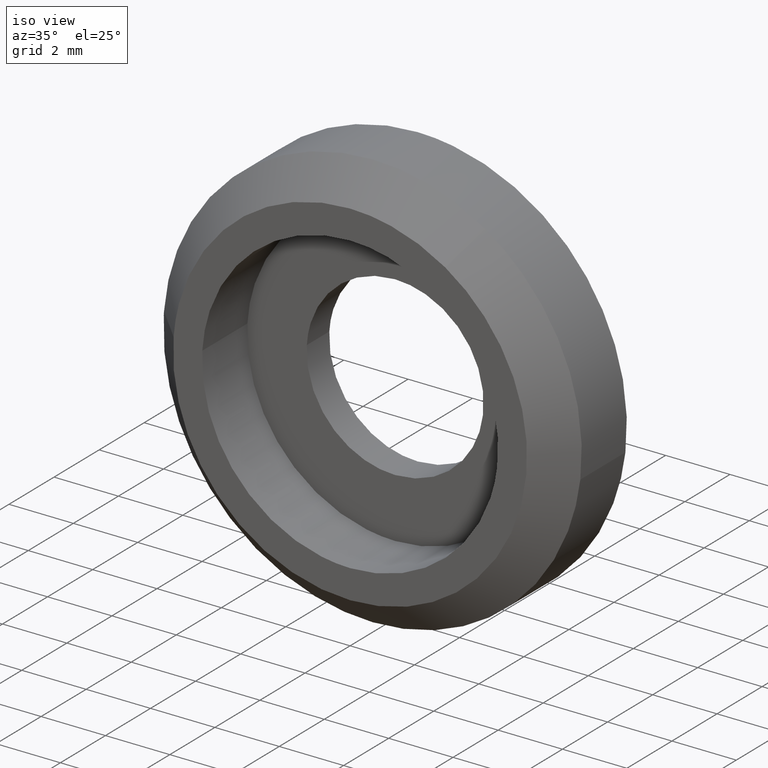
[diagram: clean part render]
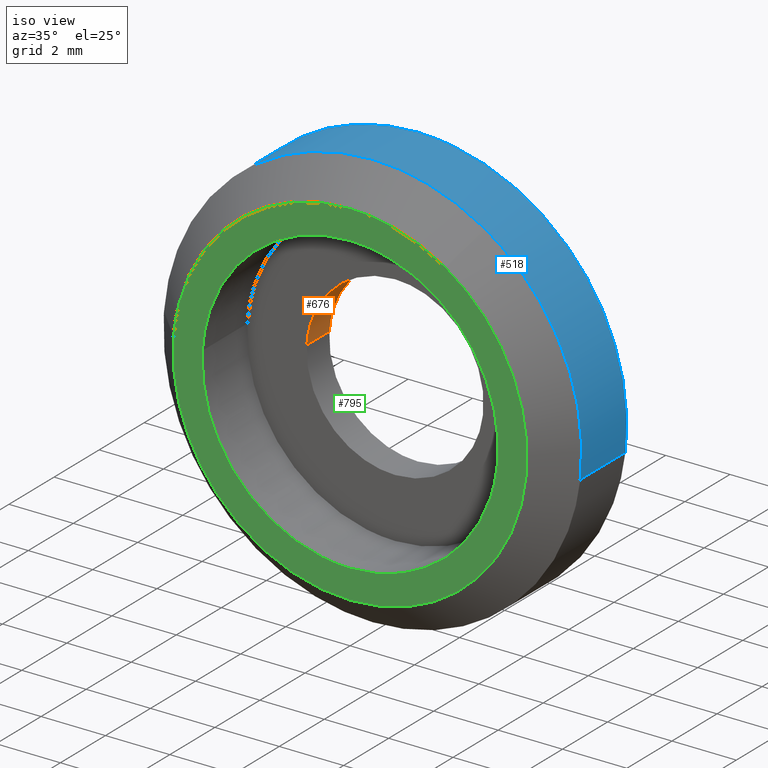
[diagram: same view with three faces highlighted in distinct colors, each labeled with its STEP entity id]
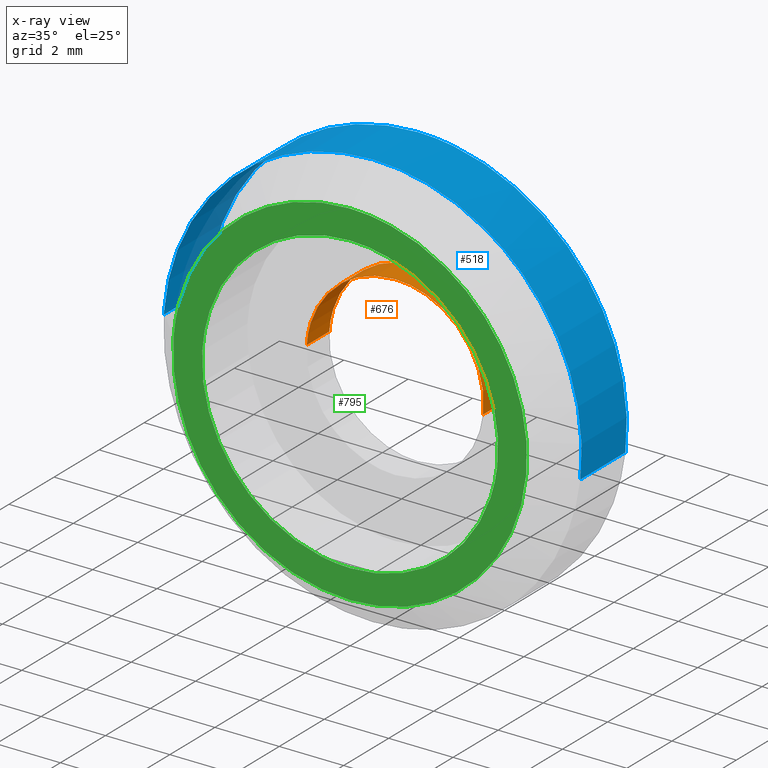
[diagram: x-ray of the same camera — body ghosted, the three highlighted faces saturated]
A machine part, iso view with three faces highlighted in distinct colors.
The next image is the same camera in x-ray (body ghosted, the three faces saturated) — at least one of them is partly hidden behind the body in this view.
Their STEP definitions:

[orange] entity #676 — the highlighted face is a freeform B-spline surface patch.
#574=CARTESIAN_POINT('',(2.730776197500084,1.025000000000000,-0.324594145306086));
#575=CARTESIAN_POINT('',(2.740065942483667,1.025000000000000,-0.246440503754439));
#576=CARTESIAN_POINT('',(2.744870695660134,1.025000000000000,-0.167883483720857));
#577=CARTESIAN_POINT('',(2.912754179380990,1.025000000000000,2.576987211939278));
#578=CARTESIAN_POINT('',(0.167883483720857,1.025000000000000,2.744870695660134));
#579=CARTESIAN_POINT('',(-2.576987211939278,1.025000000000000,2.912754179380990));
#580=CARTESIAN_POINT('',(-2.744870695660133,1.025000000000000,0.167883483720857));
#581=CARTESIAN_POINT('',(2.730776197500084,-0.025625000000000,-0.324594145306086));
#582=CARTESIAN_POINT('',(2.740065942483667,-0.025625000000000,-0.246440503754439));
#583=CARTESIAN_POINT('',(2.744870695660134,-0.025625000000000,-0.167883483720857));
#584=CARTESIAN_POINT('',(2.912754179380990,-0.025625000000000,2.576987211939278));
#585=CARTESIAN_POINT('',(0.167883483720857,-0.025625000000000,2.744870695660134));
#586=CARTESIAN_POINT('',(-2.576987211939278,-0.025625000000000,2.912754179380990));
#587=CARTESIAN_POINT('',(-2.744870695660133,-0.025625000000000,0.167883483720857));
#595=(BOUNDED_SURFACE()B_SPLINE_SURFACE(2,1,((#574,#581),(#575,#582),(#576,#583),(#577,#584),(#578,#585),(#579,#586),(#580,#587)),.UNSPECIFIED.,.F.,.F.,.U.)B_SPLINE_SURFACE_WITH_KNOTS((3,2,2,3),(2,2),(0.0,0.182253967444162,4.738603153548208,9.294952339652255),(0.0,1.0),.UNSPECIFIED.)GEOMETRIC_REPRESENTATION_ITEM()RATIONAL_B_SPLINE_SURFACE(((0.977505800795127,0.977505800795127),(0.988284271247462,0.988284271247462),(1.0,1.0),(0.707106781186548,0.707106781186548),(1.0,1.0),(0.707106781186548,0.707106781186548),(1.0,1.0)))REPRESENTATION_ITEM('')SURFACE());
#596=CARTESIAN_POINT('',(2.730776319682042,-1.124946E-014,-0.324593117398889));
#597=VERTEX_POINT('',#596);
#598=CARTESIAN_POINT('',(4.898425E-016,0.0,2.750000000000000));
#599=VERTEX_POINT('',#598);
#600=CARTESIAN_POINT('',(2.730776319682042,-1.124946E-014,-0.324593117398889));
#601=CARTESIAN_POINT('',(2.750000000000000,0.0,-0.162865809655731));
#602=CARTESIAN_POINT('',(2.750000000000000,0.0,0.0));
#603=CARTESIAN_POINT('',(2.750000000000000,0.0,2.750000000000000));
#604=CARTESIAN_POINT('',(4.898425E-016,0.0,2.750000000000000));
#612=(BOUNDED_CURVE()B_SPLINE_CURVE(2,(#600,#601,#602,#603,#604),.UNSPECIFIED.,.F.,.U.)B_SPLINE_CURVE_WITH_KNOTS((3,2,3),(0.229562537131132,0.250000000000000,0.500000000000000),.UNSPECIFIED.)CURVE()GEOMETRIC_REPRESENTATION_ITEM()RATIONAL_B_SPLINE_CURVE((0.956026878876884,0.976056022863828,1.0,0.707106781186548,1.0))REPRESENTATION_ITEM(''));
#613=EDGE_CURVE('',#597,#599,#612,.T.);
#614=ORIENTED_EDGE('',*,*,#613,.T.);
#615=CARTESIAN_POINT('',(-2.744870927625979,6.940802E-014,0.167879691026804));
#616=VERTEX_POINT('',#615);
#617=CARTESIAN_POINT('',(4.898425E-016,0.0,2.750000000000000));
#618=CARTESIAN_POINT('',(-2.586945265149691,0.0,2.750000000000001));
#619=CARTESIAN_POINT('',(-2.744870927625979,6.940802E-014,0.167879691026804));
#627=(BOUNDED_CURVE()B_SPLINE_CURVE(2,(#617,#618,#619),.UNSPECIFIED.,.F.,.U.)B_SPLINE_CURVE_WITH_KNOTS((3,3),(0.500000000000000,0.739333200656587),.UNSPECIFIED.)CURVE()GEOMETRIC_REPRESENTATION_ITEM()RATIONAL_B_SPLINE_CURVE((1.0,0.719603713963066,0.976072552641646))REPRESENTATION_ITEM(''));
#628=EDGE_CURVE('',#599,#616,#627,.T.);
#629=ORIENTED_EDGE('',*,*,#628,.T.);
#630=CARTESIAN_POINT('',(-2.744870924766029,1.0,0.167879737788683));
#631=VERTEX_POINT('',#630);
#632=CARTESIAN_POINT('',(-2.744870924766029,1.0,0.167879737788683));
#633=CARTESIAN_POINT('',(-2.744870927625979,6.940802E-014,0.167879691026804));
#634=QUASI_UNIFORM_CURVE('',1,(#632,#633),.UNSPECIFIED.,.F.,.U.);
#635=EDGE_CURVE('',#631,#616,#634,.T.);
#636=ORIENTED_EDGE('',*,*,#635,.F.);
#637=CARTESIAN_POINT('',(4.898425E-016,1.0,2.750000000000000));
#638=VERTEX_POINT('',#637);
#639=CARTESIAN_POINT('',(4.898425E-016,1.0,2.750000000000000));
#640=CARTESIAN_POINT('',(-2.586945220995899,1.0,2.749999999999999));
#641=CARTESIAN_POINT('',(-2.744870924766029,1.0,0.167879737788683));
#649=(BOUNDED_CURVE()B_SPLINE_CURVE(2,(#639,#640,#641),.UNSPECIFIED.,.F.,.U.)B_SPLINE_CURVE_WITH_KNOTS((3,3),(0.500000000000000,0.739333197717062),.UNSPECIFIED.)CURVE()GEOMETRIC_REPRESENTATION_ITEM()RATIONAL_B_SPLINE_CURVE((1.0,0.719603717406933,0.976072546341672))REPRESENTATION_ITEM(''));
#650=EDGE_CURVE('',#638,#631,#649,.T.);
#651=ORIENTED_EDGE('',*,*,#650,.F.);
#652=CARTESIAN_POINT('',(2.730776318172569,1.0,-0.324593130098012));
#653=VERTEX_POINT('',#652);
#654=CARTESIAN_POINT('',(2.730776318172569,1.0,-0.324593130098012));
#655=CARTESIAN_POINT('',(2.750000000000000,1.0,-0.162865816072419));
#656=CARTESIAN_POINT('',(2.750000000000000,1.0,0.0));
#657=CARTESIAN_POINT('',(2.750000000000000,1.0,2.750000000000000));
#658=CARTESIAN_POINT('',(4.898425E-016,1.0,2.750000000000000));
#666=(BOUNDED_CURVE()B_SPLINE_CURVE(2,(#654,#655,#656,#657,#658),.UNSPECIFIED.,.F.,.U.)B_SPLINE_CURVE_WITH_KNOTS((3,2,3),(0.229562536345204,0.250000000000000,0.500000000000000),.UNSPECIFIED.)CURVE()GEOMETRIC_REPRESENTATION_ITEM()RATIONAL_B_SPLINE_CURVE((0.956026877336432,0.976056021943056,1.0,0.707106781186548,1.0))REPRESENTATION_ITEM(''));
#667=EDGE_CURVE('',#653,#638,#666,.T.);
#668=ORIENTED_EDGE('',*,*,#667,.F.);
#669=CARTESIAN_POINT('',(2.730776318172569,1.0,-0.324593130098012));
#670=CARTESIAN_POINT('',(2.730776319682042,-1.124946E-014,-0.324593117398889));
#671=QUASI_UNIFORM_CURVE('',1,(#669,#670),.UNSPECIFIED.,.F.,.U.);
#672=EDGE_CURVE('',#653,#597,#671,.T.);
#673=ORIENTED_EDGE('',*,*,#672,.T.);
#674=EDGE_LOOP('',(#614,#629,#636,#651,#668,#673));
#675=FACE_OUTER_BOUND('',#674,.T.);
#676=ADVANCED_FACE('',(#675),#595,.F.);

[blue] entity #518 — the highlighted face is a freeform B-spline surface patch.
#252=CARTESIAN_POINT('',(6.454562409925407,-0.999999999999979,-0.767218415029761));
#253=VERTEX_POINT('',#252);
#254=CARTESIAN_POINT('',(3.496030157401222,-0.999999999999946,5.479760317618087));
#255=VERTEX_POINT('',#254);
#256=CARTESIAN_POINT('',(6.454562409925407,-0.999999999999979,-0.767218415029761));
#257=CARTESIAN_POINT('',(6.500000000000002,-1.0,-0.384954700891566));
#258=CARTESIAN_POINT('',(6.500000000000001,-1.0,0.0));
#259=CARTESIAN_POINT('',(6.500000000000002,-1.0,3.563258764094281));
#260=CARTESIAN_POINT('',(3.496030157401222,-0.999999999999946,5.479760317618087));
#268=(BOUNDED_CURVE()B_SPLINE_CURVE(2,(#256,#257,#258,#259,#260),.UNSPECIFIED.,.F.,.U.)B_SPLINE_CURVE_WITH_KNOTS((3,2,3),(0.229562581136241,0.250000000000000,0.407950112627521),.UNSPECIFIED.)CURVE()GEOMETRIC_REPRESENTATION_ITEM()RATIONAL_B_SPLINE_CURVE((0.956026965128767,0.976056074419019,1.0,0.814949932402312,0.863729296954906))REPRESENTATION_ITEM(''));
#269=EDGE_CURVE('',#253,#255,#268,.T.);
#312=CARTESIAN_POINT('',(-6.479962669265479,-0.999999999999622,0.509984122233905));
#313=VERTEX_POINT('',#312);
#319=CARTESIAN_POINT('',(-6.487876331741011,-0.999999999999986,0.396813185301808));
#320=VERTEX_POINT('',#319);
#321=CARTESIAN_POINT('',(-6.479962669265479,-0.999999999999622,0.509984122233905));
#322=CARTESIAN_POINT('',(-6.484413324530644,-1.0,0.453433185220409));
#323=CARTESIAN_POINT('',(-6.487876331741011,-0.999999999999986,0.396813185301808));
#331=(BOUNDED_CURVE()B_SPLINE_CURVE(2,(#321,#322,#323),.UNSPECIFIED.,.F.,.U.)B_SPLINE_CURVE_WITH_KNOTS((3,3),(0.736331300632614,0.739333023987528),.UNSPECIFIED.)CURVE()GEOMETRIC_REPRESENTATION_ITEM()RATIONAL_B_SPLINE_CURVE((0.969723356171498,0.972855539994323,0.976072174005725))REPRESENTATION_ITEM(''));
#332=EDGE_CURVE('',#313,#320,#331,.T.);
#385=CARTESIAN_POINT('',(4.898425E-016,-1.0,6.500000000000000));
#386=VERTEX_POINT('',#385);
#387=CARTESIAN_POINT('',(3.496030157401223,-0.999999999999946,5.479760317618088));
#388=CARTESIAN_POINT('',(1.896882359966342,-1.0,6.500000000000000));
#389=CARTESIAN_POINT('',(4.898425E-016,-1.0,6.500000000000000));
#397=(BOUNDED_CURVE()B_SPLINE_CURVE(2,(#387,#388,#389),.UNSPECIFIED.,.F.,.U.)B_SPLINE_CURVE_WITH_KNOTS((3,3),(0.407950112627522,0.500000000000000),.UNSPECIFIED.)CURVE()GEOMETRIC_REPRESENTATION_ITEM()RATIONAL_B_SPLINE_CURVE((0.863729296954906,0.892156848784236,1.0))REPRESENTATION_ITEM(''));
#398=EDGE_CURVE('',#255,#386,#397,.T.);
#400=CARTESIAN_POINT('',(4.898425E-016,-1.0,6.500000000000000));
#401=CARTESIAN_POINT('',(-6.008538195773006,-1.0,6.500000000000000));
#402=CARTESIAN_POINT('',(-6.479962669265479,-0.999999999999622,0.509984122233905));
#410=(BOUNDED_CURVE()B_SPLINE_CURVE(2,(#400,#401,#402),.UNSPECIFIED.,.F.,.U.)B_SPLINE_CURVE_WITH_KNOTS((3,3),(0.500000000000000,0.736331300632615),.UNSPECIFIED.)CURVE()GEOMETRIC_REPRESENTATION_ITEM()RATIONAL_B_SPLINE_CURVE((1.0,0.723120658605375,0.969723356171499))REPRESENTATION_ITEM(''));
#411=EDGE_CURVE('',#386,#313,#410,.T.);
#446=CARTESIAN_POINT('',(6.454561921363832,1.050000000000000,-0.767222525268930));
#447=CARTESIAN_POINT('',(6.476519500415937,1.050000000000000,-0.582495736146855));
#448=CARTESIAN_POINT('',(6.487876189742134,1.050000000000000,-0.396815506976570));
#449=CARTESIAN_POINT('',(6.884691696718705,1.050000000000000,6.091060682765563));
#450=CARTESIAN_POINT('',(0.396815506976571,1.050000000000000,6.487876189742133));
#451=CARTESIAN_POINT('',(-6.091060682765561,1.050000000000000,6.884691696718703));
#452=CARTESIAN_POINT('',(-6.487876189742132,1.050000000000000,0.396815506976570));
#453=CARTESIAN_POINT('',(6.454561921363832,-1.051250000000000,-0.767222525268930));
#454=CARTESIAN_POINT('',(6.476519500415937,-1.051250000000000,-0.582495736146855));
#455=CARTESIAN_POINT('',(6.487876189742134,-1.051250000000000,-0.396815506976570));
#456=CARTESIAN_POINT('',(6.884691696718705,-1.051250000000000,6.091060682765563));
#457=CARTESIAN_POINT('',(0.396815506976571,-1.051250000000000,6.487876189742133));
#458=CARTESIAN_POINT('',(-6.091060682765561,-1.051250000000000,6.884691696718703));
#459=CARTESIAN_POINT('',(-6.487876189742132,-1.051250000000000,0.396815506976570));
#467=(BOUNDED_SURFACE()B_SPLINE_SURFACE(2,1,((#446,#453),(#447,#454),(#448,#455),(#449,#456),(#450,#457),(#451,#458),(#452,#459)),.UNSPECIFIED.,.F.,.F.,.U.)B_SPLINE_SURFACE_WITH_KNOTS((3,2,2,3),(2,2),(0.0,0.430782104868019,11.200334726568490,21.969887348268959),(0.0,2.101250000000000),.UNSPECIFIED.)GEOMETRIC_REPRESENTATION_ITEM()RATIONAL_B_SPLINE_SURFACE(((0.977505800795127,0.977505800795127),(0.988284271247462,0.988284271247462),(1.0,1.0),(0.707106781186548,0.707106781186548),(1.0,1.0),(0.707106781186548,0.707106781186548),(1.0,1.0)))REPRESENTATION_ITEM('')SURFACE());
#468=ORIENTED_EDGE('',*,*,#269,.F.);
#469=CARTESIAN_POINT('',(6.454562403899240,1.000000000000000,-0.767218465727815));
#470=VERTEX_POINT('',#469);
#471=CARTESIAN_POINT('',(6.454562403899240,1.000000000000000,-0.767218465727815));
#472=CARTESIAN_POINT('',(6.454562409925407,-0.999999999999979,-0.767218415029761));
#473=QUASI_UNIFORM_CURVE('',1,(#471,#472),.UNSPECIFIED.,.F.,.U.);
#474=EDGE_CURVE('',#470,#253,#473,.T.);
#475=ORIENTED_EDGE('',*,*,#474,.F.);
#476=CARTESIAN_POINT('',(4.898425E-016,1.0,6.500000000000000));
#477=VERTEX_POINT('',#476);
#478=CARTESIAN_POINT('',(6.454562403899240,1.000000000000000,-0.767218465727815));
#479=CARTESIAN_POINT('',(6.500000000000001,1.0,-0.384954726508574));
#480=CARTESIAN_POINT('',(6.500000000000001,1.0,0.0));
#481=CARTESIAN_POINT('',(6.500000000000000,1.0,6.500000000000000));
#482=CARTESIAN_POINT('',(4.898425E-016,1.0,6.500000000000000));
#490=(BOUNDED_CURVE()B_SPLINE_CURVE(2,(#478,#479,#480,#481,#482),.UNSPECIFIED.,.F.,.U.)B_SPLINE_CURVE_WITH_KNOTS((3,2,3),(0.229562579808786,0.250000000000000,0.500000000000000),.UNSPECIFIED.)CURVE()GEOMETRIC_REPRESENTATION_ITEM()RATIONAL_B_SPLINE_CURVE((0.956026962526900,0.976056072863809,1.0,0.707106781186547,1.0))REPRESENTATION_ITEM(''));
#491=EDGE_CURVE('',#470,#477,#490,.T.);
#492=ORIENTED_EDGE('',*,*,#491,.T.);
#493=CARTESIAN_POINT('',(-6.487876329990308,1.0,0.396813213925880));
#494=VERTEX_POINT('',#493);
#495=CARTESIAN_POINT('',(4.898425E-016,1.0,6.500000000000000));
#496=CARTESIAN_POINT('',(-6.114591600043400,1.0,6.500000000000000));
#497=CARTESIAN_POINT('',(-6.487876329990309,1.0,0.396813213925880));
#505=(BOUNDED_CURVE()B_SPLINE_CURVE(2,(#495,#496,#497),.UNSPECIFIED.,.F.,.U.)B_SPLINE_CURVE_WITH_KNOTS((3,3),(0.500000000000000,0.739333023226263),.UNSPECIFIED.)CURVE()GEOMETRIC_REPRESENTATION_ITEM()RATIONAL_B_SPLINE_CURVE((1.0,0.719603921835620,0.976072172374189))REPRESENTATION_ITEM(''));
#506=EDGE_CURVE('',#477,#494,#505,.T.);
#507=ORIENTED_EDGE('',*,*,#506,.T.);
#508=CARTESIAN_POINT('',(-6.487876329990308,1.0,0.396813213925880));
#509=CARTESIAN_POINT('',(-6.487876331741011,-0.999999999999986,0.396813185301808));
#510=QUASI_UNIFORM_CURVE('',1,(#508,#509),.UNSPECIFIED.,.F.,.U.);
#511=EDGE_CURVE('',#494,#320,#510,.T.);
#512=ORIENTED_EDGE('',*,*,#511,.T.);
#513=ORIENTED_EDGE('',*,*,#332,.F.);
#514=ORIENTED_EDGE('',*,*,#411,.F.);
#515=ORIENTED_EDGE('',*,*,#398,.F.);
#516=EDGE_LOOP('',(#468,#475,#492,#507,#512,#513,#514,#515));
#517=FACE_OUTER_BOUND('',#516,.T.);
#518=ADVANCED_FACE('',(#517),#467,.T.);

[green] entity #795 — the highlighted face is a freeform B-spline surface patch.
#85=CARTESIAN_POINT('',(4.567843923526642,-2.0,-0.542956619169509));
#86=VERTEX_POINT('',#85);
#92=CARTESIAN_POINT('',(4.898425E-016,-2.0,4.600000000000000));
#93=VERTEX_POINT('',#92);
#94=CARTESIAN_POINT('',(4.567843923526642,-2.000000000000000,-0.542956619169509));
#95=CARTESIAN_POINT('',(4.600000000000000,-2.000000000000000,-0.272430081052766));
#96=CARTESIAN_POINT('',(4.600000000000001,-2.0,0.0));
#97=CARTESIAN_POINT('',(4.600000000000001,-2.0,4.600000000000000));
#98=CARTESIAN_POINT('',(4.898425E-016,-2.0,4.600000000000000));
#106=(BOUNDED_CURVE()B_SPLINE_CURVE(2,(#94,#95,#96,#97,#98),.UNSPECIFIED.,.F.,.U.)B_SPLINE_CURVE_WITH_KNOTS((3,2,3),(0.229562537171638,0.250000000000000,0.500000000000000),.UNSPECIFIED.)CURVE()GEOMETRIC_REPRESENTATION_ITEM()RATIONAL_B_SPLINE_CURVE((0.956026878956277,0.976056022911283,1.0,0.707106781186547,1.0))REPRESENTATION_ITEM(''));
#107=EDGE_CURVE('',#86,#93,#106,.T.);
#109=CARTESIAN_POINT('',(-4.591420351980636,-2.0,0.280818716251385));
#110=VERTEX_POINT('',#109);
#111=CARTESIAN_POINT('',(4.898425E-016,-2.0,4.600000000000000));
#112=CARTESIAN_POINT('',(-4.327252218730626,-2.0,4.600000000000000));
#113=CARTESIAN_POINT('',(-4.591420351980636,-2.000000000000000,0.280818716251385));
#121=(BOUNDED_CURVE()B_SPLINE_CURVE(2,(#111,#112,#113),.UNSPECIFIED.,.F.,.U.)B_SPLINE_CURVE_WITH_KNOTS((3,3),(0.500000000000000,0.739333133818792),.UNSPECIFIED.)CURVE()GEOMETRIC_REPRESENTATION_ITEM()RATIONAL_B_SPLINE_CURVE((1.0,0.719603792268414,0.976072409395271))REPRESENTATION_ITEM(''));
#122=EDGE_CURVE('',#93,#110,#121,.T.);
#196=CARTESIAN_POINT('',(4.898425E-016,-2.0,-4.600000000000000));
#197=VERTEX_POINT('',#196);
#198=CARTESIAN_POINT('',(-4.591420351980636,-2.000000000000000,0.280818716251385));
#199=CARTESIAN_POINT('',(-4.599999999999999,-2.000000000000000,0.140540421968442));
#200=CARTESIAN_POINT('',(-4.599999999999999,-2.0,0.0));
#201=CARTESIAN_POINT('',(-4.600000000000000,-2.0,-4.600000000000000));
#202=CARTESIAN_POINT('',(4.898425E-016,-2.0,-4.600000000000000));
#210=(BOUNDED_CURVE()B_SPLINE_CURVE(2,(#198,#199,#200,#201,#202),.UNSPECIFIED.,.F.,.U.)B_SPLINE_CURVE_WITH_KNOTS((3,2,3),(0.739333133818792,0.750000000000000,1.0),.UNSPECIFIED.)CURVE()GEOMETRIC_REPRESENTATION_ITEM()RATIONAL_B_SPLINE_CURVE((0.976072409395271,0.987502988918134,1.0,0.707106781186547,1.0))REPRESENTATION_ITEM(''));
#211=EDGE_CURVE('',#110,#197,#210,.T.);
#213=CARTESIAN_POINT('',(4.898425E-016,-2.0,-4.600000000000000));
#214=CARTESIAN_POINT('',(4.085604369074106,-1.999999999999999,-4.600000000000000));
#215=CARTESIAN_POINT('',(4.567843923526642,-2.000000000000000,-0.542956619169509));
#223=(BOUNDED_CURVE()B_SPLINE_CURVE(2,(#213,#214,#215),.UNSPECIFIED.,.F.,.U.)B_SPLINE_CURVE_WITH_KNOTS((3,3),(0.0,0.229562537171638),.UNSPECIFIED.)CURVE()GEOMETRIC_REPRESENTATION_ITEM()RATIONAL_B_SPLINE_CURVE((1.0,0.731050758275264,0.956026878956277))REPRESENTATION_ITEM(''));
#224=EDGE_CURVE('',#197,#86,#223,.T.);
#271=CARTESIAN_POINT('',(2.958179363957607,-1.999999999999788,4.636720268752224));
#272=VERTEX_POINT('',#271);
#278=CARTESIAN_POINT('',(4.898425E-016,-2.0,-5.500000000000000));
#279=VERTEX_POINT('',#278);
#280=CARTESIAN_POINT('',(4.898425E-016,-2.0,-5.500000000000000));
#281=CARTESIAN_POINT('',(5.500000000000001,-2.000000000000000,-5.500000000000001));
#282=CARTESIAN_POINT('',(5.500000000000001,-2.0,0.0));
#283=CARTESIAN_POINT('',(5.500000000000000,-2.000000000000000,3.015065108075712));
#284=CARTESIAN_POINT('',(2.958179363957608,-1.999999999999788,4.636720268752226));
#292=(BOUNDED_CURVE()B_SPLINE_CURVE(2,(#280,#281,#282,#283,#284),.UNSPECIFIED.,.F.,.U.)B_SPLINE_CURVE_WITH_KNOTS((3,2,3),(0.0,0.250000000000000,0.407950112627348),.UNSPECIFIED.)CURVE()GEOMETRIC_REPRESENTATION_ITEM()RATIONAL_B_SPLINE_CURVE((1.0,0.707106781186548,1.0,0.814949932402515,0.863729296954799))REPRESENTATION_ITEM(''));
#293=EDGE_CURVE('',#279,#272,#292,.T.);
#295=CARTESIAN_POINT('',(-5.483045335532477,-1.999999999999305,0.431525026508502));
#296=VERTEX_POINT('',#295);
#297=CARTESIAN_POINT('',(-5.483045335532477,-1.999999999999305,0.431525026508502));
#298=CARTESIAN_POINT('',(-5.499999999999999,-2.000000000000000,0.216095588547506));
#299=CARTESIAN_POINT('',(-5.499999999999999,-2.0,0.0));
#300=CARTESIAN_POINT('',(-5.499999999999999,-2.000000000000000,-5.500000000000001));
#301=CARTESIAN_POINT('',(4.898425E-016,-2.0,-5.500000000000000));
#309=(BOUNDED_CURVE()B_SPLINE_CURVE(2,(#297,#298,#299,#300,#301),.UNSPECIFIED.,.F.,.U.)B_SPLINE_CURVE_WITH_KNOTS((3,2,3),(0.736331300632436,0.750000000000000,1.0),.UNSPECIFIED.)CURVE()GEOMETRIC_REPRESENTATION_ITEM()RATIONAL_B_SPLINE_CURVE((0.969723356171124,0.983986122580963,1.0,0.707106781186548,1.0))REPRESENTATION_ITEM(''));
#310=EDGE_CURVE('',#296,#279,#309,.T.);
#414=CARTESIAN_POINT('',(4.898425E-016,-2.0,5.500000000000000));
#415=VERTEX_POINT('',#414);
#416=CARTESIAN_POINT('',(4.898425E-016,-2.0,5.500000000000000));
#417=CARTESIAN_POINT('',(-5.084147704110269,-2.000000000000000,5.499999999999999));
#418=CARTESIAN_POINT('',(-5.483045335532477,-1.999999999999304,0.431525026508502));
#426=(BOUNDED_CURVE()B_SPLINE_CURVE(2,(#416,#417,#418),.UNSPECIFIED.,.F.,.U.)B_SPLINE_CURVE_WITH_KNOTS((3,3),(0.500000000000000,0.736331300632435),.UNSPECIFIED.)CURVE()GEOMETRIC_REPRESENTATION_ITEM()RATIONAL_B_SPLINE_CURVE((1.0,0.723120658605585,0.969723356171123))REPRESENTATION_ITEM(''));
#427=EDGE_CURVE('',#415,#296,#426,.T.);
#429=CARTESIAN_POINT('',(2.958179363957608,-1.999999999999788,4.636720268752226));
#430=CARTESIAN_POINT('',(1.605054304590299,-2.0,5.500000000000001));
#431=CARTESIAN_POINT('',(4.898425E-016,-2.0,5.500000000000000));
#439=(BOUNDED_CURVE()B_SPLINE_CURVE(2,(#429,#430,#431),.UNSPECIFIED.,.F.,.U.)B_SPLINE_CURVE_WITH_KNOTS((3,3),(0.407950112627348,0.500000000000000),.UNSPECIFIED.)CURVE()GEOMETRIC_REPRESENTATION_ITEM()RATIONAL_B_SPLINE_CURVE((0.863729296954799,0.892156848784032,1.0))REPRESENTATION_ITEM(''));
#440=EDGE_CURVE('',#272,#415,#439,.T.);
#778=CARTESIAN_POINT('',(-6.047750389742101,-2.0,-6.049449978679865));
#779=CARTESIAN_POINT('',(-6.047750389742101,-2.0,6.049450273722857));
#780=CARTESIAN_POINT('',(6.047335264252870,-2.0,-6.049449978679865));
#781=CARTESIAN_POINT('',(6.047335264252870,-2.0,6.049450273722857));
#782=B_SPLINE_SURFACE_WITH_KNOTS('',1,1,((#778,#780),(#779,#781)),.UNSPECIFIED.,.F.,.F.,.U.,(2,2),(2,2),(0.0,12.098900252402720),(0.0,12.095085653994969),.UNSPECIFIED.);
#783=ORIENTED_EDGE('',*,*,#293,.T.);
#784=ORIENTED_EDGE('',*,*,#440,.T.);
#785=ORIENTED_EDGE('',*,*,#427,.T.);
#786=ORIENTED_EDGE('',*,*,#310,.T.);
#787=EDGE_LOOP('',(#783,#784,#785,#786));
#788=FACE_OUTER_BOUND('',#787,.T.);
#789=ORIENTED_EDGE('',*,*,#122,.F.);
#790=ORIENTED_EDGE('',*,*,#107,.F.);
#791=ORIENTED_EDGE('',*,*,#224,.F.);
#792=ORIENTED_EDGE('',*,*,#211,.F.);
#793=EDGE_LOOP('',(#789,#790,#791,#792));
#794=FACE_BOUND('',#793,.T.);
#795=ADVANCED_FACE('',(#788,#794),#782,.F.);